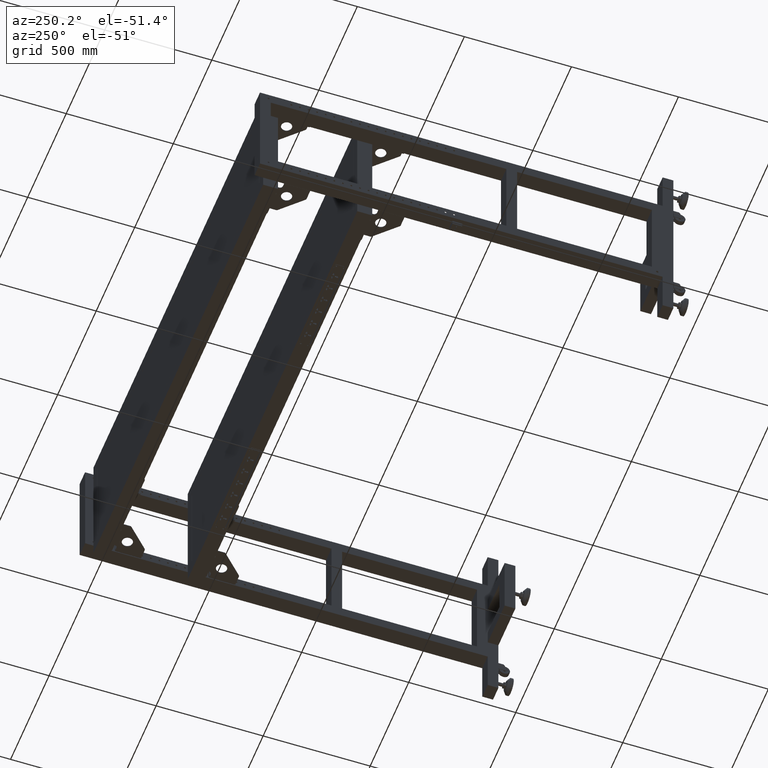
[diagram: clean part render]
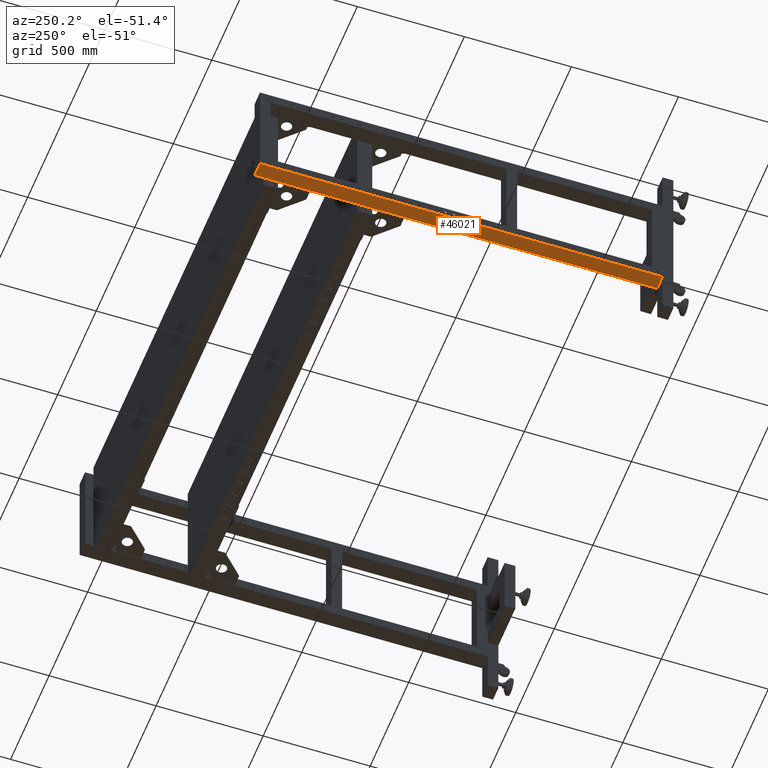
[diagram: same view with one face highlighted and labeled with its STEP entity id]
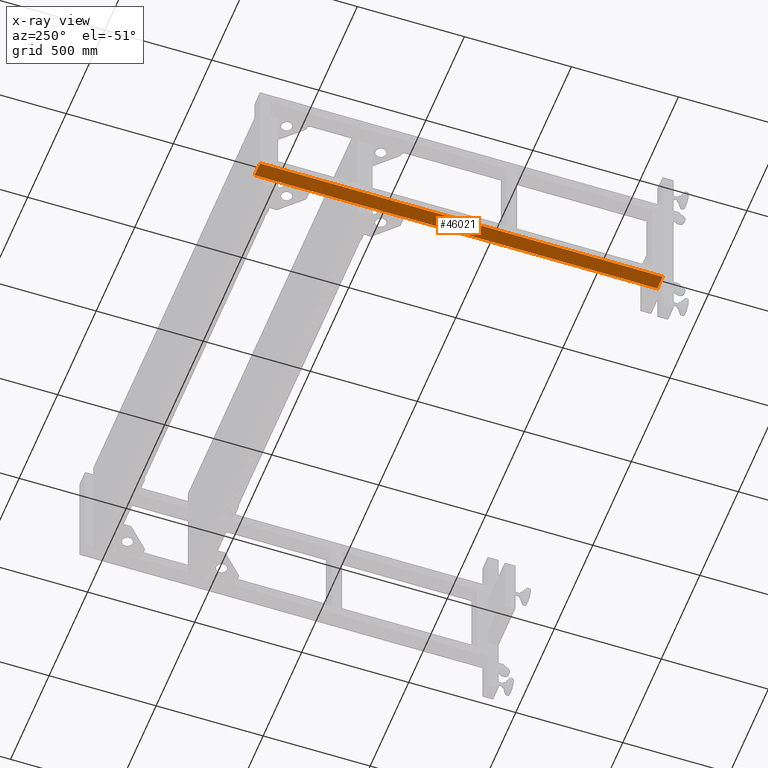
[diagram: x-ray of the same camera — body ghosted, the highlighted face saturated]
A machine part, auxiliary view. The second image highlights one B-rep face of the part: STEP entity #46021.
The next image is the same camera in x-ray: the body ghosted, the highlighted face saturated — about 0% of this face is hidden behind the body in this view.
In plain terms, the highlighted planar face has unit normal (0, 0, -1).
Its self-contained STEP definition (entity closure, byte-faithful):
#311 = VERTEX_POINT ( 'NONE', #47751 ) ;
#1124 = DIRECTION ( 'NONE',  ( 0.000000000000000000, 0.000000000000000000, -1.000000000000000000 ) ) ;
#1397 = LINE ( 'NONE', #14062, #76004 ) ;
#1528 = CARTESIAN_POINT ( 'NONE',  ( -1338.172487437185055, -844.5589195979889610, -250.0000000000000000 ) ) ;
#2900 = CARTESIAN_POINT ( 'NONE',  ( -1338.172487437185055, 919.4410804020136538, -250.0000000000000000 ) ) ;
#3972 = LINE ( 'NONE', #53465, #51385 ) ;
#4979 = ORIENTED_EDGE ( 'NONE', *, *, #18540, .F. ) ;
#6892 = DIRECTION ( 'NONE',  ( 1.000000000000000000, 0.000000000000000000, 0.000000000000000000 ) ) ;
#7397 = ORIENTED_EDGE ( 'NONE', *, *, #13498, .F. ) ;
#10116 = EDGE_CURVE ( 'NONE', #64500, #48417, #3972, .T. ) ;
#11400 = LINE ( 'NONE', #50248, #40603 ) ;
#11788 = ORIENTED_EDGE ( 'NONE', *, *, #38068, .T. ) ;
#11905 = DIRECTION ( 'NONE',  ( 0.000000000000000000, 1.000000000000000000, 0.000000000000000000 ) ) ;
#13308 = CARTESIAN_POINT ( 'NONE',  ( -1268.172487437185964, 926.9410804020139949, -250.0000000000000000 ) ) ;
#13366 = EDGE_CURVE ( 'NONE', #75217, #29123, #34206, .T. ) ;
#13498 = EDGE_CURVE ( 'NONE', #62455, #47570, #24319, .T. ) ;
#14062 = CARTESIAN_POINT ( 'NONE',  ( -1338.172487437185964, 1036.441080402011039, -250.0000000000000000 ) ) ;
#14614 = LINE ( 'NONE', #57207, #55802 ) ;
#14884 = CARTESIAN_POINT ( 'NONE',  ( -1321.172487437185055, 131.4410804020110675, -250.0000000000000000 ) ) ;
#15583 = CARTESIAN_POINT ( 'NONE',  ( -1321.172487437185055, 85.44108040201103904, -250.0000000000000000 ) ) ;
#15593 = VECTOR ( 'NONE', #37003, 1000.000000000000000 ) ;
#16583 = CARTESIAN_POINT ( 'NONE',  ( -1268.172487437184827, -844.5589195979889610, -250.0000000000000000 ) ) ;
#17082 = CARTESIAN_POINT ( 'NONE',  ( -1285.172487437185055, 85.44108040201103904, -250.0000000000000000 ) ) ;
#18023 = CARTESIAN_POINT ( 'NONE',  ( -1338.172487437185055, -844.5589195979889610, -250.0000000000000000 ) ) ;
#18540 = EDGE_CURVE ( 'NONE', #53146, #30513, #58454, .T. ) ;
#20677 = CARTESIAN_POINT ( 'NONE',  ( -1268.172487437184827, -844.5589195979889610, -250.0000000000000000 ) ) ;
#20950 = ORIENTED_EDGE ( 'NONE', *, *, #37534, .T. ) ;
#21153 = DIRECTION ( 'NONE',  ( -1.000000000000000000, 0.000000000000000000, 0.000000000000000000 ) ) ;
#22420 = CARTESIAN_POINT ( 'NONE',  ( -1321.172487437185055, 85.44108040201103904, -250.0000000000000000 ) ) ;
#22677 = ORIENTED_EDGE ( 'NONE', *, *, #69835, .F. ) ;
#22790 = DIRECTION ( 'NONE',  ( 0.000000000000000000, -1.000000000000000000, 0.000000000000000000 ) ) ;
#24319 = LINE ( 'NONE', #25140, #70317 ) ;
#25140 = CARTESIAN_POINT ( 'NONE',  ( -1268.172487437185964, 986.4410804020109254, -250.0000000000000000 ) ) ;
#25456 = VERTEX_POINT ( 'NONE', #27493 ) ;
#26353 = DIRECTION ( 'NONE',  ( -1.000000000000000000, 0.000000000000000000, 0.000000000000000000 ) ) ;
#27319 = CARTESIAN_POINT ( 'NONE',  ( -1321.172487437185055, 85.44108040201103904, -250.0000000000000000 ) ) ;
#27493 = CARTESIAN_POINT ( 'NONE',  ( -1285.172487437185055, 85.44108040201103904, -250.0000000000000000 ) ) ;
#27626 = ORIENTED_EDGE ( 'NONE', *, *, #65620, .T. ) ;
#29123 = VERTEX_POINT ( 'NONE', #53016 ) ;
#29346 = ORIENTED_EDGE ( 'NONE', *, *, #56261, .F. ) ;
#30255 = CARTESIAN_POINT ( 'NONE',  ( -1268.156444386293742, 926.9410804020139949, -250.0000000000000000 ) ) ;
#30513 = VERTEX_POINT ( 'NONE', #14884 ) ;
#32222 = FACE_OUTER_BOUND ( 'NONE', #65337, .T. ) ;
#34000 = LINE ( 'NONE', #2900, #49531 ) ;
#34206 = LINE ( 'NONE', #16583, #58527 ) ;
#35195 = CARTESIAN_POINT ( 'NONE',  ( -1268.156444386293742, 919.4410804020135402, -250.0000000000000000 ) ) ;
#36150 = CARTESIAN_POINT ( 'NONE',  ( -1268.172487437185964, 1036.441080402011039, -250.0000000000000000 ) ) ;
#36419 = VECTOR ( 'NONE', #47385, 1000.000000000000000 ) ;
#36516 = DIRECTION ( 'NONE',  ( 0.000000000000000000, -1.000000000000000000, 0.000000000000000000 ) ) ;
#37003 = DIRECTION ( 'NONE',  ( -1.000000000000000000, 0.000000000000000000, 0.000000000000000000 ) ) ;
#37497 = VERTEX_POINT ( 'NONE', #18023 ) ;
#37534 = EDGE_CURVE ( 'NONE', #37497, #311, #62639, .T. ) ;
#38068 = EDGE_CURVE ( 'NONE', #64500, #74471, #14614, .T. ) ;
#39719 = EDGE_CURVE ( 'NONE', #75217, #37497, #61955, .T. ) ;
#40125 = ORIENTED_EDGE ( 'NONE', *, *, #66882, .F. ) ;
#40603 = VECTOR ( 'NONE', #68302, 1000.000000000000000 ) ;
#40888 = ORIENTED_EDGE ( 'NONE', *, *, #10116, .F. ) ;
#45468 = CARTESIAN_POINT ( 'NONE',  ( -1285.172487437185055, 131.4410804020110675, -250.0000000000000000 ) ) ;
#45470 = DIRECTION ( 'NONE',  ( -1.000000000000000000, 1.585669478376821542E-15, -0.000000000000000000 ) ) ;
#46021 = ADVANCED_FACE ( 'NONE', ( #69861, #32222 ), #57200, .T. ) ;
#47385 = DIRECTION ( 'NONE',  ( -1.000000000000000000, 0.000000000000000000, 0.000000000000000000 ) ) ;
#47570 = VERTEX_POINT ( 'NONE', #36150 ) ;
#47751 = CARTESIAN_POINT ( 'NONE',  ( -1338.172487437185964, 1036.441080402011039, -250.0000000000000000 ) ) ;
#47897 = VECTOR ( 'NONE', #11905, 1000.000000000000000 ) ;
#47947 = CARTESIAN_POINT ( 'NONE',  ( -1268.172487437185964, 996.9410804020127443, -250.0000000000000000 ) ) ;
#48417 = VERTEX_POINT ( 'NONE', #13308 ) ;
#49531 = VECTOR ( 'NONE', #45470, 1000.000000000000000 ) ;
#50248 = CARTESIAN_POINT ( 'NONE',  ( -1321.172487437185055, 131.4410804020110675, -250.0000000000000000 ) ) ;
#50339 = CARTESIAN_POINT ( 'NONE',  ( -1338.172487437185055, -844.5589195979889610, -250.0000000000000000 ) ) ;
#51385 = VECTOR ( 'NONE', #21153, 1000.000000000000000 ) ;
#52289 = DIRECTION ( 'NONE',  ( -7.542275982507828797E-17, 1.000000000000000000, 0.000000000000000000 ) ) ;
#53016 = CARTESIAN_POINT ( 'NONE',  ( -1268.172487437184827, 919.4410804020135402, -250.0000000000000000 ) ) ;
#53146 = VERTEX_POINT ( 'NONE', #15583 ) ;
#53465 = CARTESIAN_POINT ( 'NONE',  ( -1338.172487437185055, 926.9410804020139949, -250.0000000000000000 ) ) ;
#55802 = VECTOR ( 'NONE', #58418, 1000.000000000000000 ) ;
#56261 = EDGE_CURVE ( 'NONE', #57020, #25456, #61280, .T. ) ;
#57020 = VERTEX_POINT ( 'NONE', #45468 ) ;
#57200 = PLANE ( 'NONE',  #61755 ) ;
#57207 = CARTESIAN_POINT ( 'NONE',  ( -1268.156444386293742, 986.4410804020136538, -250.0000000000000000 ) ) ;
#58418 = DIRECTION ( 'NONE',  ( -1.000000000000000078E-15, -1.000000000000000000, -0.000000000000000000 ) ) ;
#58454 = LINE ( 'NONE', #27319, #61157 ) ;
#58527 = VECTOR ( 'NONE', #71417, 1000.000000000000000 ) ;
#61148 = CARTESIAN_POINT ( 'NONE',  ( -1338.172487437185055, -844.5589195979889610, -250.0000000000000000 ) ) ;
#61154 = EDGE_CURVE ( 'NONE', #74471, #29123, #34000, .T. ) ;
#61157 = VECTOR ( 'NONE', #52289, 1000.000000000000000 ) ;
#61182 = DIRECTION ( 'NONE',  ( 0.000000000000000000, 1.000000000000000000, 0.000000000000000000 ) ) ;
#61280 = LINE ( 'NONE', #17082, #62129 ) ;
#61755 = AXIS2_PLACEMENT_3D ( 'NONE', #1528, #1124, #6892 ) ;
#61955 = LINE ( 'NONE', #61148, #15593 ) ;
#62129 = VECTOR ( 'NONE', #22790, 1000.000000000000000 ) ;
#62455 = VERTEX_POINT ( 'NONE', #47947 ) ;
#62639 = LINE ( 'NONE', #50339, #47897 ) ;
#64500 = VERTEX_POINT ( 'NONE', #30255 ) ;
#65337 = EDGE_LOOP ( 'NONE', ( #20950, #22677, #7397, #27626, #40888, #11788, #78840, #67108, #74808 ) ) ;
#65620 = EDGE_CURVE ( 'NONE', #62455, #48417, #79886, .T. ) ;
#66882 = EDGE_CURVE ( 'NONE', #25456, #53146, #78478, .T. ) ;
#67108 = ORIENTED_EDGE ( 'NONE', *, *, #13366, .F. ) ;
#67205 = VECTOR ( 'NONE', #36516, 1000.000000000000000 ) ;
#67625 = CARTESIAN_POINT ( 'NONE',  ( -1268.172487437185964, -844.5589195979889610, -250.0000000000000000 ) ) ;
#68302 = DIRECTION ( 'NONE',  ( 1.000000000000000000, 3.083952846180990083E-15, 0.000000000000000000 ) ) ;
#69835 = EDGE_CURVE ( 'NONE', #47570, #311, #1397, .T. ) ;
#69861 = FACE_BOUND ( 'NONE', #76922, .T. ) ;
#70317 = VECTOR ( 'NONE', #61182, 1000.000000000000000 ) ;
#71417 = DIRECTION ( 'NONE',  ( 0.000000000000000000, 1.000000000000000000, 0.000000000000000000 ) ) ;
#74471 = VERTEX_POINT ( 'NONE', #35195 ) ;
#74808 = ORIENTED_EDGE ( 'NONE', *, *, #39719, .T. ) ;
#75217 = VERTEX_POINT ( 'NONE', #20677 ) ;
#76004 = VECTOR ( 'NONE', #26353, 1000.000000000000000 ) ;
#76922 = EDGE_LOOP ( 'NONE', ( #29346, #80307, #4979, #40125 ) ) ;
#78478 = LINE ( 'NONE', #22420, #36419 ) ;
#78840 = ORIENTED_EDGE ( 'NONE', *, *, #61154, .T. ) ;
#78893 = EDGE_CURVE ( 'NONE', #30513, #57020, #11400, .T. ) ;
#79886 = LINE ( 'NONE', #67625, #67205 ) ;
#80307 = ORIENTED_EDGE ( 'NONE', *, *, #78893, .F. ) ;